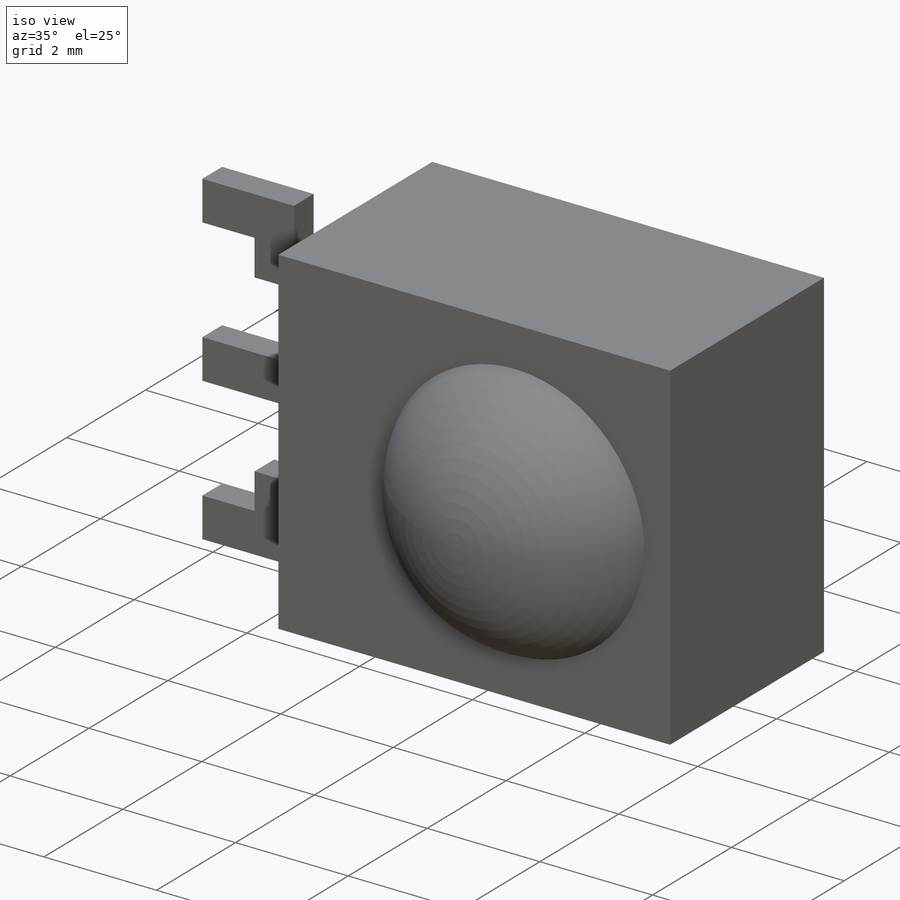
[diagram: iso view]
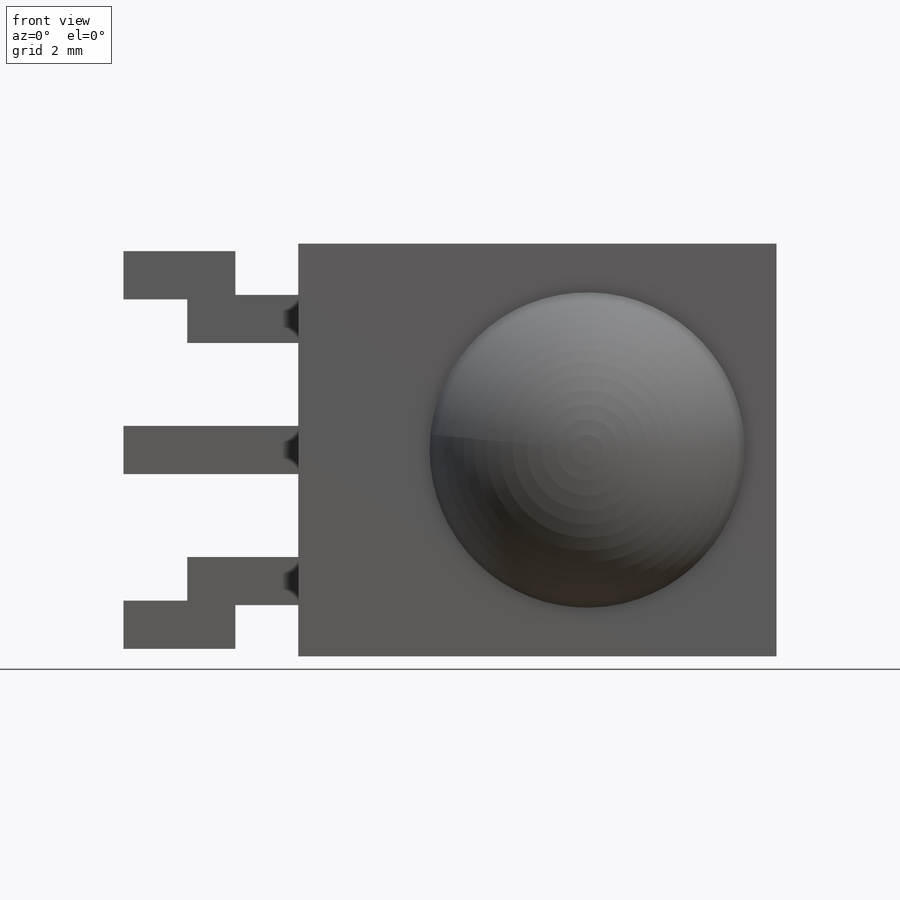
[diagram: front view]
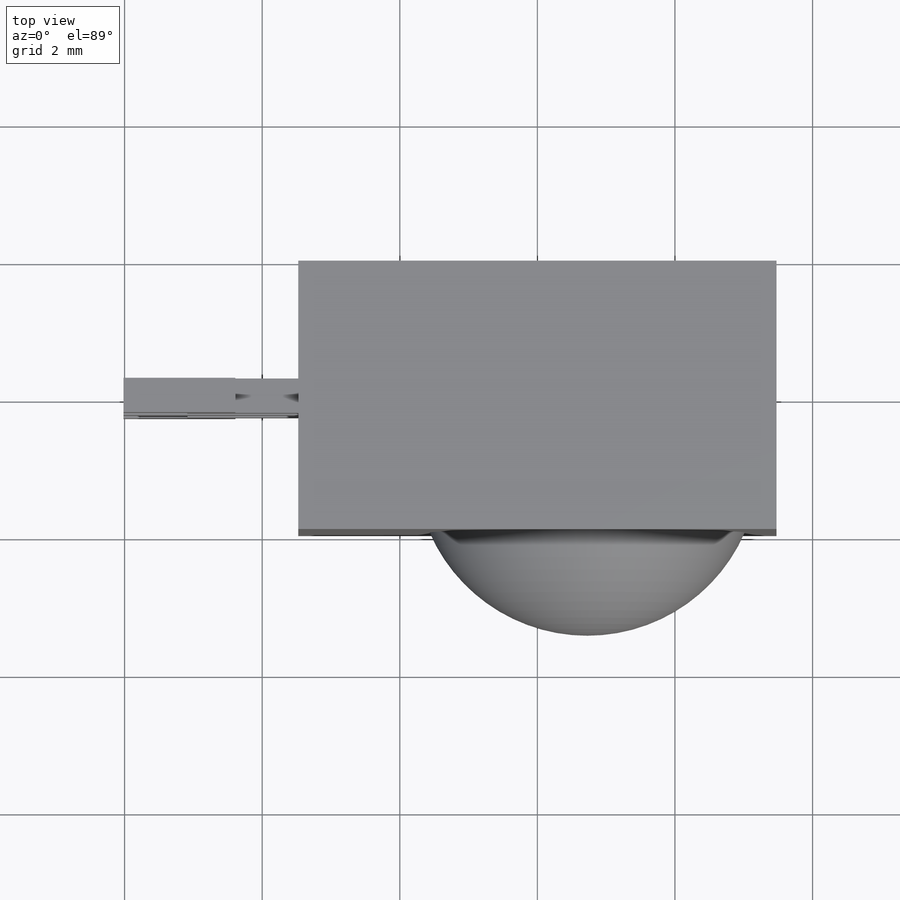
[diagram: top view]
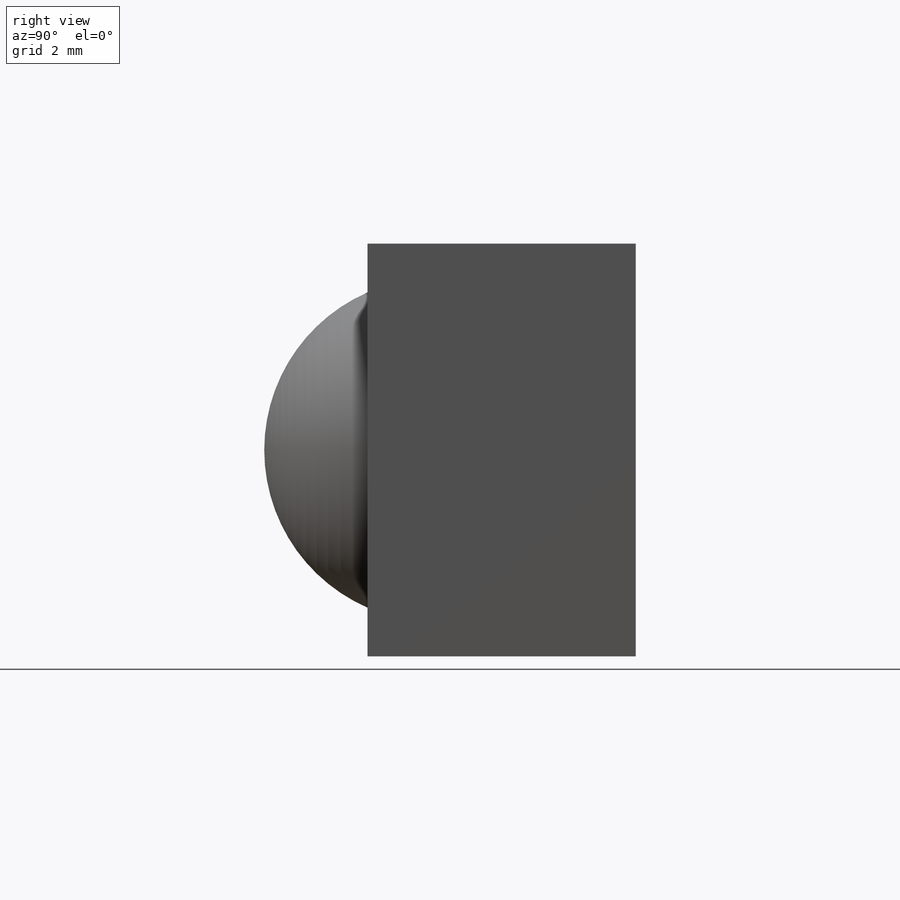
[diagram: right view]
SOLIDWORKS PART (.sldprt)
format: sldprt  version: not decoded by parser v0  size: 311,296 bytes
history: native  units: mm
features: sketch x10, extrude x3, sweep x2, material x1, revolve x1, cut_extrude x1 (+14 scaffold rows collapsed)
feature tree (32):
  scaffold x14  (default folders/planes/origin — collapsed)
  material  "Material <not specified>"
  sketch  "Sketch1"  dims[D1=6.95mm D2=6.0mm]
  extrude  "Boss-Extrude1"  Depth=3.9mm
  sketch  "Sketch3"  dims[D1=0.7mm D2=1.905mm D3=1.905mm D4=0.5mm]
  sketch  "Sketch5"  dims[D1=8.215mm D2=2.54mm D3=4.7625mm]
  sketch  "Sketch6"
  sweep  "Sweep2"
  sketch  "Sketch7"
  sketch  "Sketch8"
  extrude  "Boss-Extrude3"  [1 undecoded]
  sketch  "Sketch10"  dims[D1=8.215mm D2=2.54mm]
  sweep  "Sweep3"
  sketch  "Sketch4"  dims[c1.D2=2.5mm c1.D1=1.5mm c1.D3=8.25mm c1.D4=5.55mm c2.D3=2.75mm]
  revolve  "Revolve6"  Angle=360deg
  sketch  "Sketch11"  dims[D1=0.5mm]
  extrude  "Boss-Extrude4"  Depth=2.54mm
  sketch  "Sketch12"  dims[D1=2.54mm]
  cut_extrude  "Cut-Extrude1"  [1 undecoded]
decode coverage: 10 of 17 modeling features carry decoded parameters
note: 2 parameter values undecoded
note: suppression state not decoded; provenance and decode notes live in map.json
